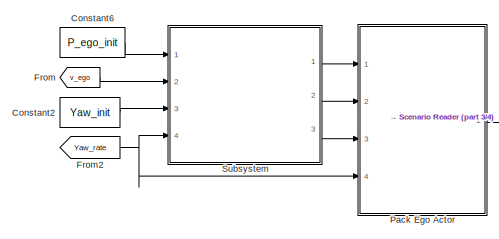
[diagram: root canvas - part 1/4, top left region]
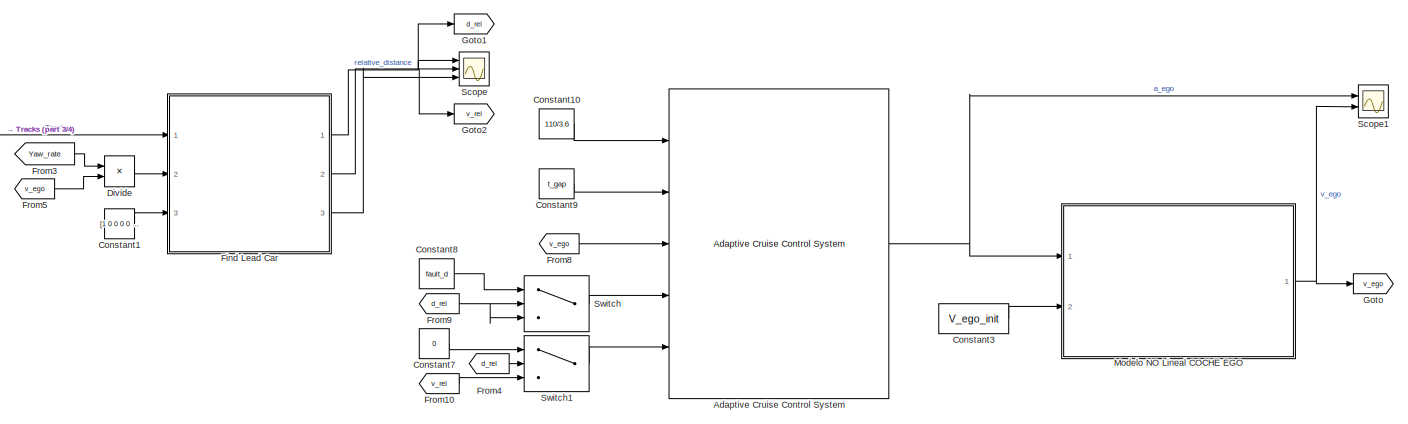
[diagram: root canvas - part 2/4, middle right region]
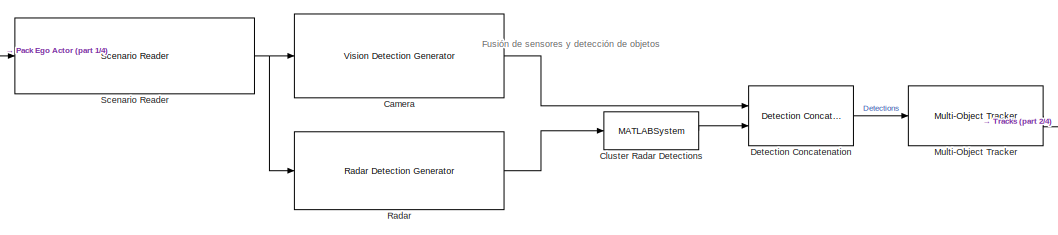
[diagram: root canvas - part 3/4, top center region]
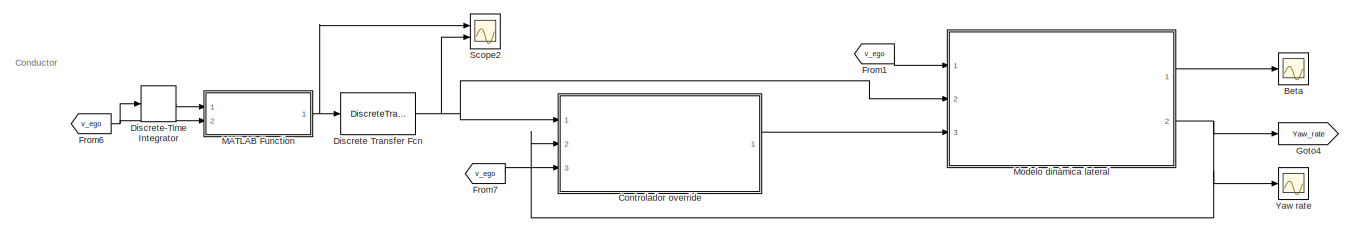
[diagram: root canvas - part 4/4, bottom center region]
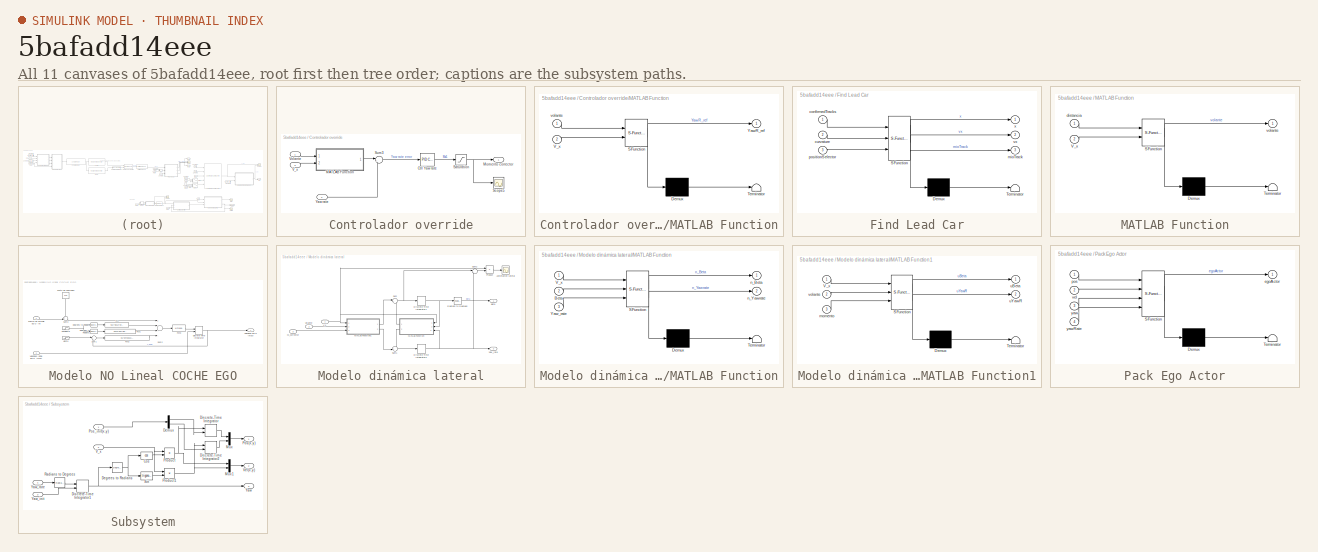
[diagram: thumbnail index - all 11 canvases of the model, root first then tree order]
MODEL slx_5bafadd14eee
KIND model
CONFIG AbsTol = auto
CONFIG EnableMultiTasking = off
CONFIG FixedStep = auto
CONFIG MaxStep = auto
CONFIG MinStep = auto
CONFIG RelTol = 1e-3
CONFIG SampleTimeConstraint = Unconstrained
CONFIG Solver = FixedStepDiscrete
CONFIG SolverName = FixedStepDiscrete
CONFIG StartTime = 0.0
CONFIG StopTime = 33
WORKSPACE source: mxarray member
WORKSPACE firstWarning = 1
WORKSPACE originalScenarioChecksum = 'FC0F50B9430312EE3AA3C1EBF2A1E89A'
BLOCK [Reference] Adaptive Cruise Control System  REF=mpcadaslib/Adaptive Cruise Control System
  Ports = [5, 1]
  SourceBlock = mpcadaslib/Adaptive Cruise Control System
  SourceProductBaseCode = MP
  SourceProductName = Model Predictive Control Toolbox
  SourceType = Adaptive cruise control (ACC) system
BLOCK [Scope] Beta
  Floating = off
  NumInputPorts = 1
  Ports = [1]
  ScopeSpecificationString = Simulink.scopes.TimeScopeBlockCfg('CurrentConfiguration', extmgr.ConfigurationSet(extmgr.Configuration('Core','General UI',true),extmgr.Configuration('Core','Source UI',true),extmgr.Configuration('Sources','WiredSimulink',true,'DataLoggingVariableName','ScopeData3'),extmgr.Configuration('Visuals','Time Domain',true,'SerializedDisplays',{struct('MinYLimReal','-0.91209','MaxYLimReal','1.46513','YLab...<+1505ch>
BLOCK [Reference] Camera  REF=drivingscenarioandsensors/Vision Detection Generator
  Ports = [1, 1]
  SourceBlock = drivingscenarioandsensors/Vision Detection Generator
  SourceProductBaseCode = DR
  SourceProductName = Automated Driving Toolbox
  SourceType = visionDetectionGenerator
BLOCK [MATLABSystem] Cluster Radar Detections
  BusName = BusClusterDetections
  BusNameSource = Auto
  ClusterSize = 5
  MaskDisplay = disp(['Detection' char(10) 'Clustering']);\nport_label('input',1,'In');\nport_label('output',1,'Out');
  MaskType = helperClusterDetections
  Ports = [1, 1]
  SimulateUsing = Interpreted execution
  System = helperClusterDetections
BLOCK [Constant] Constant1
  Value = [1 0 0 0 0 0; 0 0 1 0 0 0]
BLOCK [Constant] Constant10
  Value = 110/3.6
BLOCK [Constant] Constant2
  Value = Yaw_init
BLOCK [Constant] Constant3
  Value = V_ego_init
BLOCK [Constant] Constant6
  Value = P_ego_init
BLOCK [Constant] Constant7
  Value = 0
BLOCK [Constant] Constant8
  Value = fault_d
BLOCK [Constant] Constant9
  Value = t_gap
BLOCK [SubSystem] Controlador override
  Ports = [3, 1]
  RequestExecContextInheritance = off
BLOCK [Reference] Controlador override/Ctrl Yaw rate  REF=simulink/Continuous/PID Controller
  Ports = [1, 1]
  SourceBlock = simulink/Continuous/PID Controller
  SourceProductBaseCode = SL
  SourceProductName = Simulink
  SourceType = PID 1dof
BLOCK [SubSystem] Controlador override/MATLAB Function
  ErrorFcn = Stateflow.Translate.translate
  PermitHierarchicalResolution = ExplicitOnly
  Ports = [2, 1]
  RequestExecContextInheritance = off
  SFBlockType = MATLAB Function
  TreatAsAtomicUnit = on
BLOCK [Demux] Controlador override/MATLAB Function/ Demux 
  Outputs = 1
  Ports = [1, 1]
BLOCK [S-Function] Controlador override/MATLAB Function/ SFunction 
  EnableBusSupport = on
  FunctionName = sf_sfun
  PortCounts = [2 2]
  Ports = [2, 2]
  SFcnIsStateOwnerBlock = off
  SFunctionDeploymentMode = off
  Tag = Stateflow S-Function 4
BLOCK [Terminator] Controlador override/MATLAB Function/ Terminator 
BLOCK [Inport] Controlador override/MATLAB Function/V_x
  IconDisplay = Port number
  Port = 2
BLOCK [Outport] Controlador override/MATLAB Function/YawR_ref
  IconDisplay = Port number
BLOCK [Inport] Controlador override/MATLAB Function/volante
  IconDisplay = Port number
BLOCK [Outport] Controlador override/Momento corrector
  IconDisplay = Port number
BLOCK [Saturate] Controlador override/Saturation
  InputPortMap = u0
  LowerLimit = -5000
  Ports = [1, 1]
  UpperLimit = 5000
BLOCK [Scope] Controlador override/Scope5
  Floating = off
  NumInputPorts = 1
  Ports = [1]
  ScopeSpecificationString = Simulink.scopes.TimeScopeBlockCfg('CurrentConfiguration', extmgr.ConfigurationSet(extmgr.Configuration('Core','General UI',true),extmgr.Configuration('Core','Source UI',true),extmgr.Configuration('Sources','WiredSimulink',true,'DataLoggingVariableName','ScopeData7'),extmgr.Configuration('Visuals','Time Domain',true,'SerializedDisplays',{struct('MinYLimReal','-1957.4759','MaxYLimReal','1863.39713',...<+1485ch>
BLOCK [Sum] Controlador override/Sum3
  IconShape = round
  InputSameDT = off
  Inputs = |+-
  OutDataTypeStr = Inherit: Inherit via internal rule
  Ports = [2, 1]
  SaturateOnIntegerOverflow = off
BLOCK [Inport] Controlador override/V_x
  IconDisplay = Port number
  Port = 3
BLOCK [Inport] Controlador override/Volante
  IconDisplay = Port number
BLOCK [Inport] Controlador override/Yaw rate
  IconDisplay = Port number
  Port = 2
BLOCK [Reference] Detection Concatenation  REF=drivinglib/Detection Concatenation
  Ports = [2, 1]
  SourceBlock = drivinglib/Detection Concatenation
  SourceProductBaseCode = DR
  SourceProductName = Automated Driving Toolbox
  SourceType = driving.internal.DetectionConcatenation
BLOCK [DiscreteTransferFcn] Discrete Transfer Fcn
  Denominator = dendriver
  InitialStates = 0.5
  InputPortMap = u0
  Numerator = numdriver
  Ports = [1, 1]
  SampleTime = Tsdriver
BLOCK [DiscreteIntegrator] Discrete-Time Integrator
  ICPrevOutput = DiscIntNeverNeededParam
  ICPrevScaledInput = DiscIntNeverNeededParam
  InitialConditionSetting = Auto
  Ports = [1, 1]
  SampleTime = -1
BLOCK [Product] Divide
  InputSameDT = off
  Inputs = */
  OutDataTypeStr = Inherit: Inherit via internal rule
  Ports = [2, 1]
  RndMeth = Floor
  SaturateOnIntegerOverflow = off
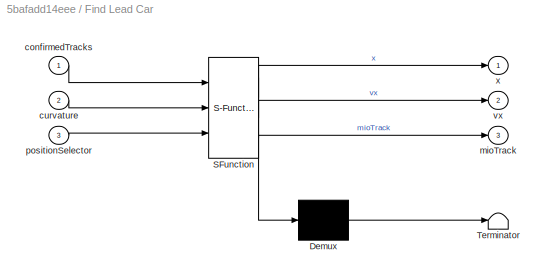
BLOCK [SubSystem] Find Lead Car
  ErrorFcn = Stateflow.Translate.translate
  PermitHierarchicalResolution = ExplicitOnly
  Ports = [3, 3]
  RequestExecContextInheritance = off
  SFBlockType = MATLAB Function
  TreatAsAtomicUnit = on
BLOCK [Demux] Find Lead Car/ Demux 
  Outputs = 1
  Ports = [1, 1]
BLOCK [S-Function] Find Lead Car/ SFunction 
  EnableBusSupport = on
  FunctionName = sf_sfun
  PortCounts = [3 4]
  Ports = [3, 4]
  SFcnIsStateOwnerBlock = off
  SFunctionDeploymentMode = off
  Tag = Stateflow S-Function 1
BLOCK [Terminator] Find Lead Car/ Terminator 
BLOCK [Inport] Find Lead Car/confirmedTracks
  IconDisplay = Port number
BLOCK [Inport] Find Lead Car/curvature
  IconDisplay = Port number
  Port = 2
BLOCK [Outport] Find Lead Car/mioTrack
  IconDisplay = Port number
  Port = 3
  VectorParamsAs1DForOutWhenUnconnected = off
BLOCK [Inport] Find Lead Car/positionSelector
  IconDisplay = Port number
  Port = 3
BLOCK [Outport] Find Lead Car/vx
  IconDisplay = Port number
  Port = 2
  VectorParamsAs1DForOutWhenUnconnected = off
BLOCK [Outport] Find Lead Car/x
  IconDisplay = Port number
  VectorParamsAs1DForOutWhenUnconnected = off
BLOCK [From] From
  GotoTag = v_ego
  TagVisibility = global
BLOCK [From] From1
  GotoTag = v_ego
  TagVisibility = global
BLOCK [From] From10
  GotoTag = v_rel
BLOCK [From] From2
  GotoTag = Yaw_rate
BLOCK [From] From3
  GotoTag = Yaw_rate
BLOCK [From] From4
  GotoTag = d_rel
BLOCK [From] From5
  GotoTag = v_ego
  TagVisibility = global
BLOCK [From] From6
  GotoTag = v_ego
  TagVisibility = global
BLOCK [From] From7
  GotoTag = v_ego
  TagVisibility = global
BLOCK [From] From8
  GotoTag = v_ego
  TagVisibility = global
BLOCK [From] From9
  GotoTag = d_rel
BLOCK [Goto] Goto
  GotoTag = v_ego
  TagVisibility = global
BLOCK [Goto] Goto1
  GotoTag = d_rel
BLOCK [Goto] Goto2
  GotoTag = v_rel
BLOCK [Goto] Goto4
  GotoTag = Yaw_rate
BLOCK [SubSystem] MATLAB Function
  ErrorFcn = Stateflow.Translate.translate
  PermitHierarchicalResolution = ExplicitOnly
  Ports = [2, 1]
  RequestExecContextInheritance = off
  SFBlockType = MATLAB Function
  TreatAsAtomicUnit = on
BLOCK [Demux] MATLAB Function/ Demux 
  Outputs = 1
  Ports = [1, 1]
BLOCK [S-Function] MATLAB Function/ SFunction 
  EnableBusSupport = on
  FunctionName = sf_sfun
  PortCounts = [2 2]
  Ports = [2, 2]
  SFcnIsStateOwnerBlock = off
  SFunctionDeploymentMode = off
  Tag = Stateflow S-Function 6
BLOCK [Terminator] MATLAB Function/ Terminator 
BLOCK [Inport] MATLAB Function/V_x
  IconDisplay = Port number
  Port = 2
BLOCK [Inport] MATLAB Function/distancia
  IconDisplay = Port number
BLOCK [Outport] MATLAB Function/volante
  IconDisplay = Port number
BLOCK [SubSystem] Modelo NO Lineal COCHE EGO
  Ports = [2, 1]
  RequestExecContextInheritance = off
BLOCK [Reference] Modelo NO Lineal COCHE EGO/Degrees to Radians  REF=simulink_extras/Transformations/Degrees to
Radians
  Ports = [1, 1]
  SourceBlock = simulink_extras/Transformations/Degrees to\nRadians
  SourceProductBaseCode = SL
  SourceProductName = Simulink
  SourceType = DegreesToRadians
BLOCK [Reference] Modelo NO Lineal COCHE EGO/Degrees to Radians1  REF=simulink_extras/Transformations/Degrees to
Radians
  Ports = [1, 1]
  SourceBlock = simulink_extras/Transformations/Degrees to\nRadians
  SourceProductBaseCode = SL
  SourceProductName = Simulink
  SourceType = DegreesToRadians
BLOCK [DiscreteIntegrator] Modelo NO Lineal COCHE EGO/Discrete-Time Integrator
  ICPrevOutput = DiscIntNeverNeededParam
  ICPrevScaledInput = DiscIntNeverNeededParam
  InitialConditionSetting = Auto
  InitialConditionSource = external
  Ports = [2, 1]
  SampleTime = -1
BLOCK [Fcn] Modelo NO Lineal COCHE EGO/Fcn
  Expr = 9.81*masa*sin(u)
BLOCK [Fcn] Modelo NO Lineal COCHE EGO/Fcn1
  Expr = 0.015*9.81*masa*cos(u)
BLOCK [Fcn] Modelo NO Lineal COCHE EGO/Fcn2
  Expr = 0.5*densidadAire*Cd*frontalArea*(u)^2
BLOCK [Fcn] Modelo NO Lineal COCHE EGO/Fcn3
  Expr = u/masa
BLOCK [Inport] Modelo NO Lineal COCHE EGO/Fuerza de empuje EGO (N)
  IconDisplay = Port number
BLOCK [Constant] Modelo NO Lineal COCHE EGO/Punto de operación
  Value = Fx0
BLOCK [Sum] Modelo NO Lineal COCHE EGO/Sum1
  IconShape = round
  InputSameDT = off
  Inputs = |++
  OutDataTypeStr = Inherit: Inherit via internal rule
  Ports = [2, 1]
  SaturateOnIntegerOverflow = off
BLOCK [Sum] Modelo NO Lineal COCHE EGO/Sum2
  InputSameDT = off
  Inputs = +---
  OutDataTypeStr = Inherit: Inherit via internal rule
  Ports = [4, 1]
  SaturateOnIntegerOverflow = off
BLOCK [Sum] Modelo NO Lineal COCHE EGO/Sum3
  IconShape = round
  InputSameDT = off
  Inputs = ++|
  OutDataTypeStr = Inherit: Inherit via internal rule
  Ports = [2, 1]
  SaturateOnIntegerOverflow = off
BLOCK [Outport] Modelo NO Lineal COCHE EGO/Velocidad EGO (mps)
  IconDisplay = Port number
  VectorParamsAs1DForOutWhenUnconnected = off
BLOCK [Inport] Modelo NO Lineal COCHE EGO/Velocidad Inicial EGO (mps)
  IconDisplay = Port number
  Port = 2
BLOCK [Step] Modelo NO Lineal COCHE EGO/pendiente
  After = FV2
  Before = IV2
  SampleTime = 0
  Time = T2
BLOCK [Step] Modelo NO Lineal COCHE EGO/viento
  After = FV3
  Before = IV3
  SampleTime = 0
  Time = T3
BLOCK [SubSystem] Modelo dinámica lateral
  Ports = [3, 2]
  RequestExecContextInheritance = off
BLOCK [Scope] Modelo dinámica lateral/Aceleración lateral
  Floating = off
  NumInputPorts = 1
  Ports = [1]
  ScopeSpecificationString = Simulink.scopes.TimeScopeBlockCfg('CurrentConfiguration', extmgr.ConfigurationSet(extmgr.Configuration('Core','General UI',true),extmgr.Configuration('Core','Source UI',true),extmgr.Configuration('Sources','WiredSimulink',true,'DataLoggingVariableName','ScopeData2'),extmgr.Configuration('Visuals','Time Domain',true,'SerializedDisplays',{struct('MinYLimReal','-5.91336','MaxYLimReal','3.59059','YLab...<+1471ch>
BLOCK [Outport] Modelo dinámica lateral/Beta
  IconDisplay = Port number
BLOCK [DiscreteIntegrator] Modelo dinámica lateral/Discrete-Time Integrator1
  ICPrevOutput = DiscIntNeverNeededParam
  ICPrevScaledInput = DiscIntNeverNeededParam
  InitialCondition = -0.011341149479459
  InitialConditionSetting = Auto
  Ports = [1, 1]
  SampleTime = 0.01
BLOCK [DiscreteIntegrator] Modelo dinámica lateral/Discrete-Time Integrator2
  ICPrevOutput = DiscIntNeverNeededParam
  ICPrevScaledInput = DiscIntNeverNeededParam
  InitialCondition = 0.08679
  InitialConditionSetting = Auto
  Ports = [1, 1]
  SampleTime = 0.01
BLOCK [SubSystem] Modelo dinámica lateral/MATLAB Function
  ErrorFcn = Stateflow.Translate.translate
  PermitHierarchicalResolution = ExplicitOnly
  Ports = [3, 2]
  RequestExecContextInheritance = off
  SFBlockType = MATLAB Function
  TreatAsAtomicUnit = on
BLOCK [Demux] Modelo dinámica lateral/MATLAB Function/ Demux 
  Outputs = 1
  Ports = [1, 1]
BLOCK [S-Function] Modelo dinámica lateral/MATLAB Function/ SFunction 
  EnableBusSupport = on
  FunctionName = sf_sfun
  PortCounts = [3 3]
  Ports = [3, 3]
  SFcnIsStateOwnerBlock = off
  SFunctionDeploymentMode = off
  Tag = Stateflow S-Function 2
BLOCK [Terminator] Modelo dinámica lateral/MATLAB Function/ Terminator 
BLOCK [Inport] Modelo dinámica lateral/MATLAB Function/Beta
  IconDisplay = Port number
  Port = 2
BLOCK [Inport] Modelo dinámica lateral/MATLAB Function/V_x
  IconDisplay = Port number
BLOCK [Inport] Modelo dinámica lateral/MATLAB Function/Yaw_rate
  IconDisplay = Port number
  Port = 3
BLOCK [Outport] Modelo dinámica lateral/MATLAB Function/n_Beta
  IconDisplay = Port number
BLOCK [Outport] Modelo dinámica lateral/MATLAB Function/n_Yawrate
  IconDisplay = Port number
  Port = 2
BLOCK [SubSystem] Modelo dinámica lateral/MATLAB Function1
  ErrorFcn = Stateflow.Translate.translate
  PermitHierarchicalResolution = ExplicitOnly
  Ports = [3, 2]
  RequestExecContextInheritance = off
  SFBlockType = MATLAB Function
  TreatAsAtomicUnit = on
BLOCK [Demux] Modelo dinámica lateral/MATLAB Function1/ Demux 
  Outputs = 1
  Ports = [1, 1]
BLOCK [S-Function] Modelo dinámica lateral/MATLAB Function1/ SFunction 
  EnableBusSupport = on
  FunctionName = sf_sfun
  PortCounts = [3 3]
  Ports = [3, 3]
  SFcnIsStateOwnerBlock = off
  SFunctionDeploymentMode = off
  Tag = Stateflow S-Function 3
BLOCK [Terminator] Modelo dinámica lateral/MATLAB Function1/ Terminator 
BLOCK [Inport] Modelo dinámica lateral/MATLAB Function1/V_x
  IconDisplay = Port number
BLOCK [Inport] Modelo dinámica lateral/MATLAB Function1/momento
  IconDisplay = Port number
  Port = 3
BLOCK [Outport] Modelo dinámica lateral/MATLAB Function1/uBeta
  IconDisplay = Port number
BLOCK [Outport] Modelo dinámica lateral/MATLAB Function1/uYawR
  IconDisplay = Port number
  Port = 2
BLOCK [Inport] Modelo dinámica lateral/MATLAB Function1/volante
  IconDisplay = Port number
  Port = 2
BLOCK [Inport] Modelo dinámica lateral/M_corrector
  IconDisplay = Port number
  Port = 3
BLOCK [Product] Modelo dinámica lateral/Product
  InputSameDT = off
  OutDataTypeStr = Inherit: Inherit via internal rule
  Ports = [2, 1]
  RndMeth = Floor
  SaturateOnIntegerOverflow = off
BLOCK [Reference] Modelo dinámica lateral/Radians to Degrees  REF=simulink_extras/Transformations/Radians
to Degrees
  Ports = [1, 1]
  SourceBlock = simulink_extras/Transformations/Radians\nto Degrees
  SourceProductBaseCode = SL
  SourceProductName = Simulink
  SourceType = RadiansToDegrees
BLOCK [Sum] Modelo dinámica lateral/Sum
  IconShape = round
  InputSameDT = off
  Inputs = |++
  OutDataTypeStr = Inherit: Inherit via internal rule
  Ports = [2, 1]
  SaturateOnIntegerOverflow = off
BLOCK [Sum] Modelo dinámica lateral/Sum1
  IconShape = round
  InputSameDT = off
  Inputs = ++|
  OutDataTypeStr = Inherit: Inherit via internal rule
  Ports = [2, 1]
  SaturateOnIntegerOverflow = off
BLOCK [Sum] Modelo dinámica lateral/Sum2
  IconShape = round
  InputSameDT = off
  Inputs = |++
  OutDataTypeStr = Inherit: Inherit via internal rule
  Ports = [2, 1]
  SaturateOnIntegerOverflow = off
BLOCK [Inport] Modelo dinámica lateral/V_x
  IconDisplay = Port number
BLOCK [Inport] Modelo dinámica lateral/Volante
  IconDisplay = Port number
  Port = 2
BLOCK [Outport] Modelo dinámica lateral/Yaw_rate
  IconDisplay = Port number
  Port = 2
BLOCK [Reference] Multi-Object Tracker  REF=drivinglib/Multi-Object Tracker
  Ports = [1, 1]
  SourceBlock = drivinglib/Multi-Object Tracker
  SourceProductBaseCode = DR
  SourceProductName = Automated Driving Toolbox
  SourceType = multiObjectTracker
BLOCK [SubSystem] Pack Ego Actor
  ErrorFcn = Stateflow.Translate.translate
  PermitHierarchicalResolution = ExplicitOnly
  Ports = [4, 1]
  RequestExecContextInheritance = off
  SFBlockType = MATLAB Function
  TreatAsAtomicUnit = on
BLOCK [Demux] Pack Ego Actor/ Demux 
  Outputs = 1
  Ports = [1, 1]
BLOCK [S-Function] Pack Ego Actor/ SFunction 
  EnableBusSupport = on
  FunctionName = sf_sfun
  PortCounts = [4 2]
  Ports = [4, 2]
  SFcnIsStateOwnerBlock = off
  SFunctionDeploymentMode = off
  Tag = Stateflow S-Function 5
BLOCK [Terminator] Pack Ego Actor/ Terminator 
BLOCK [Outport] Pack Ego Actor/egoActor
  IconDisplay = Port number
  VectorParamsAs1DForOutWhenUnconnected = off
BLOCK [Inport] Pack Ego Actor/pos
  IconDisplay = Port number
BLOCK [Inport] Pack Ego Actor/vel
  IconDisplay = Port number
  Port = 2
BLOCK [Inport] Pack Ego Actor/yaw
  IconDisplay = Port number
  Port = 3
BLOCK [Inport] Pack Ego Actor/yawRate
  IconDisplay = Port number
  Port = 4
BLOCK [Reference] Radar  REF=drivingscenarioandsensors/Radar Detection Generator
  Ports = [1, 1]
  SourceBlock = drivingscenarioandsensors/Radar Detection Generator
  SourceProductBaseCode = DR
  SourceProductName = Automated Driving Toolbox
  SourceType = radarDetectionGenerator
BLOCK [Reference] Scenario Reader  REF=drivingscenarioandsensors/Scenario Reader
  Ports = [1, 1]
  SourceBlock = drivingscenarioandsensors/Scenario Reader
  SourceProductBaseCode = DR
  SourceProductName = Automated Driving Toolbox
  SourceType = driving.scenario.internal.ScenarioReader
BLOCK [Scope] Scope
  Floating = off
  NumInputPorts = 3
  Ports = [3]
  ScopeSpecificationString = Simulink.scopes.TimeScopeBlockCfg('CurrentConfiguration', extmgr.ConfigurationSet(extmgr.Configuration('Core','General UI',true),extmgr.Configuration('Core','Source UI',true),extmgr.Configuration('Sources','WiredSimulink',true,'DataLoggingVariableName','ScopeData1'),extmgr.Configuration('Visuals','Time Domain',true,'SerializedDisplays',{struct('MinYLimReal','-4.59208','MaxYLimReal','110.18348','YL...<+2849ch>
BLOCK [Scope] Scope1
  Floating = off
  NumInputPorts = 2
  Ports = [2]
  ScopeSpecificationString = Simulink.scopes.TimeScopeBlockCfg('CurrentConfiguration', extmgr.ConfigurationSet(extmgr.Configuration('Core','General UI',true),extmgr.Configuration('Core','Source UI',true),extmgr.Configuration('Sources','WiredSimulink',true),extmgr.Configuration('Visuals','Time Domain',true,'SerializedDisplays',{struct('MinYLimReal','-3488.45487','MaxYLimReal','1396.09382','YLabelReal','','MinYLimMag','  0.0000...<+2036ch>
BLOCK [Scope] Scope2
  Floating = off
  NumInputPorts = 2
  Ports = [2]
  ScopeSpecificationString = Simulink.scopes.TimeScopeBlockCfg('CurrentConfiguration', extmgr.ConfigurationSet(extmgr.Configuration('Core','General UI',true),extmgr.Configuration('Core','Source UI',true),extmgr.Configuration('Sources','WiredSimulink',true,'DataLoggingVariableName','ScopeData1'),extmgr.Configuration('Visuals','Time Domain',true,'SerializedDisplays',{struct('MinYLimReal','-0.04197','MaxYLimReal','0.02517','YLab...<+2178ch>
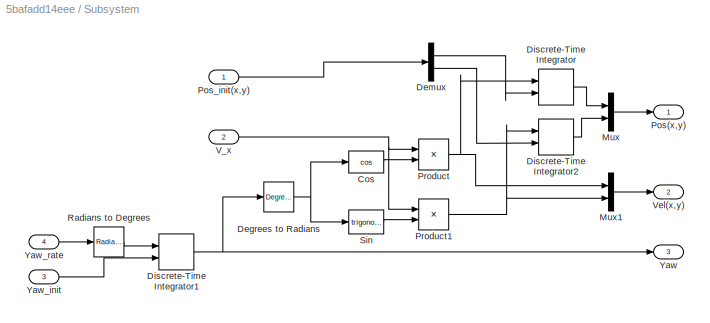
BLOCK [SubSystem] Subsystem
  Ports = [4, 3]
  RequestExecContextInheritance = off
BLOCK [Trigonometry] Subsystem/Cos
  Operator = cos
  Ports = [1, 1]
BLOCK [Reference] Subsystem/Degrees to Radians  REF=simulink_extras/Transformations/Degrees to
Radians
  Ports = [1, 1]
  SourceBlock = simulink_extras/Transformations/Degrees to\nRadians
  SourceProductBaseCode = SL
  SourceProductName = Simulink
  SourceType = DegreesToRadians
BLOCK [Demux] Subsystem/Demux
  DisplayOption = bar
  Outputs = 2
  Ports = [1, 2]
BLOCK [DiscreteIntegrator] Subsystem/Discrete-Time Integrator
  ICPrevOutput = DiscIntNeverNeededParam
  ICPrevScaledInput = DiscIntNeverNeededParam
  InitialCondition = 5
  InitialConditionSetting = Auto
  InitialConditionSource = external
  Ports = [2, 1]
  SampleTime = -1
BLOCK [DiscreteIntegrator] Subsystem/Discrete-Time Integrator1
  ICPrevOutput = DiscIntNeverNeededParam
  ICPrevScaledInput = DiscIntNeverNeededParam
  InitialConditionSetting = Auto
  InitialConditionSource = external
  Ports = [2, 1]
  SampleTime = -1
BLOCK [DiscreteIntegrator] Subsystem/Discrete-Time Integrator2
  ICPrevOutput = DiscIntNeverNeededParam
  ICPrevScaledInput = DiscIntNeverNeededParam
  InitialConditionSetting = Auto
  InitialConditionSource = external
  Ports = [2, 1]
  SampleTime = -1
BLOCK [Mux] Subsystem/Mux
  DisplayOption = bar
  Inputs = 2
  Ports = [2, 1]
BLOCK [Mux] Subsystem/Mux1
  DisplayOption = bar
  Inputs = 2
  Ports = [2, 1]
BLOCK [Outport] Subsystem/Pos(x,y)
  IconDisplay = Port number
BLOCK [Inport] Subsystem/Pos_init(x,y)
  IconDisplay = Port number
BLOCK [Product] Subsystem/Product
  InputSameDT = off
  OutDataTypeStr = Inherit: Inherit via internal rule
  Ports = [2, 1]
  RndMeth = Floor
  SaturateOnIntegerOverflow = off
BLOCK [Product] Subsystem/Product1
  InputSameDT = off
  OutDataTypeStr = Inherit: Inherit via internal rule
  Ports = [2, 1]
  RndMeth = Floor
  SaturateOnIntegerOverflow = off
BLOCK [Reference] Subsystem/Radians to Degrees  REF=simulink_extras/Transformations/Radians
to Degrees
  Ports = [1, 1]
  SourceBlock = simulink_extras/Transformations/Radians\nto Degrees
  SourceProductBaseCode = SL
  SourceProductName = Simulink
  SourceType = RadiansToDegrees
BLOCK [Trigonometry] Subsystem/Sin
  Ports = [1, 1]
BLOCK [Inport] Subsystem/V_x
  IconDisplay = Port number
  Port = 2
BLOCK [Outport] Subsystem/Vel(x,y)
  IconDisplay = Port number
  Port = 2
BLOCK [Outport] Subsystem/Yaw
  IconDisplay = Port number
  Port = 3
BLOCK [Inport] Subsystem/Yaw_init
  IconDisplay = Port number
  Port = 3
BLOCK [Inport] Subsystem/Yaw_rate
  IconDisplay = Port number
  Port = 4
BLOCK [Switch] Switch
  Criteria = u2 > Threshold
  InputSameDT = off
  SaturateOnIntegerOverflow = off
  Threshold = 200
BLOCK [Switch] Switch1
  Criteria = u2 > Threshold
  InputSameDT = off
  SaturateOnIntegerOverflow = off
  Threshold = 200
BLOCK [Scope] Yaw rate
  Floating = off
  NumInputPorts = 1
  Ports = [1]
  ScopeSpecificationString = Simulink.scopes.TimeScopeBlockCfg('CurrentConfiguration', extmgr.ConfigurationSet(extmgr.Configuration('Core','General UI',true),extmgr.Configuration('Core','Source UI',true),extmgr.Configuration('Sources','WiredSimulink',true,'DataLoggingVariableName','ScopeData8'),extmgr.Configuration('Visuals','Time Domain',true,'SerializedDisplays',{struct('MinYLimReal','-0.19775','MaxYLimReal','0.12854','YLab...<+1479ch>
ANNOTATION (root): Conductor
ANNOTATION (root): Fusión de sensores y detección de objetos
NET Adaptive Cruise Control System:1 -> Modelo NO Lineal COCHE EGO:1, Scope1:1
LINE Camera:1 -> Detection Concatenation:1
LINE Cluster Radar Detections:1 -> Detection Concatenation:2
LINE Constant10:1 -> Adaptive Cruise Control System:1
LINE Constant1:1 -> Find Lead Car:3
LINE Constant2:1 -> Subsystem:3
LINE Constant3:1 -> Modelo NO Lineal COCHE EGO:2
LINE Constant6:1 -> Subsystem:1
LINE Constant7:1 -> Switch1:1
LINE Constant8:1 -> Switch:1
LINE Constant9:1 -> Adaptive Cruise Control System:2
LINE Controlador override/Ctrl Yaw rate:1 -> Controlador override/Saturation:1
LINE Controlador override/MATLAB Function:1 -> Controlador override/Sum3:1
NET Controlador override/Saturation:1 -> Controlador override/Momento corrector:1, Controlador override/Scope5:1
LINE Controlador override/Sum3:1 -> Controlador override/Ctrl Yaw rate:1
LINE Controlador override/V_x:1 -> Controlador override/MATLAB Function:2
LINE Controlador override/Volante:1 -> Controlador override/MATLAB Function:1
LINE Controlador override/Yaw rate:1 -> Controlador override/Sum3:2
LINE Controlador override:1 -> Modelo dinámica lateral:3
LINE Detection Concatenation:1 -> Multi-Object Tracker:1
NET Discrete Transfer Fcn:1 -> Controlador override:1, Modelo dinámica lateral:2, Scope2:2
LINE Discrete-Time Integrator:1 -> MATLAB Function:1
LINE Divide:1 -> Find Lead Car:2
NET Find Lead Car:1 -> Goto1:1, Scope:1
NET Find Lead Car:2 -> Goto2:1, Scope:2
LINE Find Lead Car:3 -> Scope:3
LINE From10:1 -> Switch1:3
LINE From1:1 -> Modelo dinámica lateral:1
NET From2:1 -> Pack Ego Actor:4, Subsystem:4
LINE From3:1 -> Divide:1
LINE From4:1 -> Switch1:2
LINE From5:1 -> Divide:2
NET From6:1 -> Discrete-Time Integrator:1, MATLAB Function:2
LINE From7:1 -> Controlador override:3
LINE From8:1 -> Adaptive Cruise Control System:3
NET From9:1 -> Switch:2, Switch:3
LINE From:1 -> Subsystem:2
NET MATLAB Function:1 -> Discrete Transfer Fcn:1, Scope2:1
LINE Modelo NO Lineal COCHE EGO/Degrees to Radians1:1 -> Modelo NO Lineal COCHE EGO/Fcn1:1
LINE Modelo NO Lineal COCHE EGO/Degrees to Radians:1 -> Modelo NO Lineal COCHE EGO/Fcn:1
NET Modelo NO Lineal COCHE EGO/Discrete-Time Integrator:1 -> Modelo NO Lineal COCHE EGO/Sum1:2, Modelo NO Lineal COCHE EGO/Velocidad EGO (mps):1
LINE Modelo NO Lineal COCHE EGO/Fcn1:1 -> Modelo NO Lineal COCHE EGO/Sum2:3
LINE Modelo NO Lineal COCHE EGO/Fcn2:1 -> Modelo NO Lineal COCHE EGO/Sum2:4
LINE Modelo NO Lineal COCHE EGO/Fcn3:1 -> Modelo NO Lineal COCHE EGO/Discrete-Time Integrator:1
LINE Modelo NO Lineal COCHE EGO/Fcn:1 -> Modelo NO Lineal COCHE EGO/Sum2:2
LINE Modelo NO Lineal COCHE EGO/Fuerza de empuje EGO (N):1 -> Modelo NO Lineal COCHE EGO/Sum3:2
LINE Modelo NO Lineal COCHE EGO/Punto de operación:1 -> Modelo NO Lineal COCHE EGO/Sum3:1
LINE Modelo NO Lineal COCHE EGO/Sum1:1 -> Modelo NO Lineal COCHE EGO/Fcn2:1
LINE Modelo NO Lineal COCHE EGO/Sum2:1 -> Modelo NO Lineal COCHE EGO/Fcn3:1
LINE Modelo NO Lineal COCHE EGO/Sum3:1 -> Modelo NO Lineal COCHE EGO/Sum2:1
LINE Modelo NO Lineal COCHE EGO/Velocidad Inicial EGO (mps):1 -> Modelo NO Lineal COCHE EGO/Discrete-Time Integrator:2
NET Modelo NO Lineal COCHE EGO/pendiente:1 -> Modelo NO Lineal COCHE EGO/Degrees to Radians1:1, Modelo NO Lineal COCHE EGO/Degrees to Radians:1
LINE Modelo NO Lineal COCHE EGO/viento:1 -> Modelo NO Lineal COCHE EGO/Sum1:1
NET Modelo NO Lineal COCHE EGO:1 -> Goto:1, Scope1:2
NET Modelo dinámica lateral/Discrete-Time Integrator1:1 -> Modelo dinámica lateral/MATLAB Function:2, Modelo dinámica lateral/Radians to Degrees:1
NET Modelo dinámica lateral/Discrete-Time Integrator2:1 -> Modelo dinámica lateral/MATLAB Function:3, Modelo dinámica lateral/Sum2:2, Modelo dinámica lateral/Yaw_rate:1
LINE Modelo dinámica lateral/MATLAB Function1:1 -> Modelo dinámica lateral/Sum:1
LINE Modelo dinámica lateral/MATLAB Function1:2 -> Modelo dinámica lateral/Sum1:2
LINE Modelo dinámica lateral/MATLAB Function:1 -> Modelo dinámica lateral/Sum:2
LINE Modelo dinámica lateral/MATLAB Function:2 -> Modelo dinámica lateral/Sum1:1
LINE Modelo dinámica lateral/M_corrector:1 -> Modelo dinámica lateral/MATLAB Function1:3
LINE Modelo dinámica lateral/Product:1 -> Modelo dinámica lateral/Aceleración lateral:1
LINE Modelo dinámica lateral/Radians to Degrees:1 -> Modelo dinámica lateral/Beta:1
LINE Modelo dinámica lateral/Sum1:1 -> Modelo dinámica lateral/Discrete-Time Integrator2:1
LINE Modelo dinámica lateral/Sum2:1 -> Modelo dinámica lateral/Product:2
NET Modelo dinámica lateral/Sum:1 -> Modelo dinámica lateral/Discrete-Time Integrator1:1, Modelo dinámica lateral/Sum2:1
NET Modelo dinámica lateral/V_x:1 -> Modelo dinámica lateral/MATLAB Function1:1, Modelo dinámica lateral/MATLAB Function:1, Modelo dinámica lateral/Product:1
LINE Modelo dinámica lateral/Volante:1 -> Modelo dinámica lateral/MATLAB Function1:2
LINE Modelo dinámica lateral:1 -> Beta:1
NET Modelo dinámica lateral:2 -> Controlador override:2, Goto4:1, Yaw rate:1
LINE Multi-Object Tracker:1 -> Find Lead Car:1
LINE Pack Ego Actor:1 -> Scenario Reader:1
LINE Radar:1 -> Cluster Radar Detections:1
NET Scenario Reader:1 -> Camera:1, Radar:1
LINE Subsystem/Cos:1 -> Subsystem/Product:2
NET Subsystem/Degrees to Radians:1 -> Subsystem/Cos:1, Subsystem/Sin:1
LINE Subsystem/Demux:1 -> Subsystem/Discrete-Time Integrator:2
LINE Subsystem/Demux:2 -> Subsystem/Discrete-Time Integrator2:2
NET Subsystem/Discrete-Time Integrator1:1 -> Subsystem/Degrees to Radians:1, Subsystem/Yaw:1
LINE Subsystem/Discrete-Time Integrator2:1 -> Subsystem/Mux:2
LINE Subsystem/Discrete-Time Integrator:1 -> Subsystem/Mux:1
LINE Subsystem/Mux1:1 -> Subsystem/Vel(x,y):1
LINE Subsystem/Mux:1 -> Subsystem/Pos(x,y):1
LINE Subsystem/Pos_init(x,y):1 -> Subsystem/Demux:1
NET Subsystem/Product1:1 -> Subsystem/Discrete-Time Integrator2:1, Subsystem/Mux1:2
NET Subsystem/Product:1 -> Subsystem/Discrete-Time Integrator:1, Subsystem/Mux1:1
LINE Subsystem/Radians to Degrees:1 -> Subsystem/Discrete-Time Integrator1:1
LINE Subsystem/Sin:1 -> Subsystem/Product1:2
NET Subsystem/V_x:1 -> Subsystem/Product1:1, Subsystem/Product:1
LINE Subsystem/Yaw_init:1 -> Subsystem/Discrete-Time Integrator1:2
LINE Subsystem/Yaw_rate:1 -> Subsystem/Radians to Degrees:1
LINE Subsystem:1 -> Pack Ego Actor:1
LINE Subsystem:2 -> Pack Ego Actor:2
LINE Subsystem:3 -> Pack Ego Actor:3
LINE Switch1:1 -> Adaptive Cruise Control System:5
LINE Switch:1 -> Adaptive Cruise Control System:4
note: NET lines group one-source signal fan-out (src -> all destinations, sorted); 1:1 wires keep LINE
CHART Find Lead Car states=1 transitions=1
  STATE_LABEL 'eML_blk_kernel()'
  STATE_LABEL "SCRIPT:\nfunction [x,vx,mioTrack] = findLeadCar(confirmedTracks, curvature, positionSelector)\n% This function finds the lead car: a car in front of the ego car that\n% satisfies all the criteria below:\n% * Within the ego car's lane.\n% * In front of the ego car.\n% * Closest to the ego car.\n\n% Important notes:\n% 1. If you change state definition, change the following:\n%       State = [x;vx;y;vy;z;vz] ...<+1713ch>"
CHART Modelo dinámica lateral/MATLAB Function states=1 transitions=1
  STATE_LABEL 'eML_blk_kernel()'
  STATE_LABEL 'SCRIPT:\nfunction [n_Beta, n_Yawrate] = matrizA(V_x,Beta,Yaw_rate)\n\nmasa = 1435;\nL = 2.54;\na = 1.14;\nb = L - a;\nI_z = 2420;\nC_af = 44000;\nC_ar = 47000;\n\nA = [-2*(C_af+C_ar)/(masa*V_x) 2*(-a*C_af + b*C_ar)/(masa*V_x^2)-1; ...\n    2*(-a*C_af + b*C_ar)/I_z -2*(a^2*C_af + b^2*C_ar)/(I_z*V_x)];\n\nn_estados = A*[Beta; Yaw_rate];\nn_Beta = n_estados(1);\nn_Yawrate = n_estados(2);'
CHART Modelo dinámica lateral/MATLAB Function1 states=1 transitions=1
  STATE_LABEL 'eML_blk_kernel()'
  STATE_LABEL 'SCRIPT:\nfunction [uBeta, uYawR] = matrizB(V_x,volante,momento)\n\nmasa = 1435;\na = 1.14;\nI_z = 2420;\nC_af = 44000;\nC_ar = 47000;\n\nB = [2*C_af/(masa*V_x) 0; 2*a*C_ar/I_z 1/I_z];\n\nus = B*[volante; momento];\nuBeta = us(1);\nuYawR = us(2);'
CHART Controlador override/MATLAB Function states=1 transitions=1
  STATE_LABEL 'eML_blk_kernel()'
  STATE_LABEL 'SCRIPT:\nfunction YawR_ref = YawR_ref(volante,V_x)\n\nmasa = 1435;\nL = 2.54;\na = 1.14;\nb = L - a;\nC_af = 44000;\nC_ar = 47000;\n\nYawR_ref = V_x/(L+masa/L*(b/C_af-a/C_ar)*V_x^2)*volante;'
CHART Pack Ego Actor states=1 transitions=1
  STATE_LABEL 'eML_blk_kernel()'
  STATE_LABEL "SCRIPT:\nfunction egoActor = packEgo(pos,vel,yaw,yawRate)\n% Pack ego information into a single ego actor bus\n%\n% Imoprtant note:\n% Output is a bus of type BusActorsActors. This is the same bus used by the\n% Scenario Reader to output an individual actor. If you change the\n% output bus name of Scenario Reader, change the output bus name here\n% as well by clicking on 'Edit Data' in the menu above.\n\neg...<+215ch>"
CHART MATLAB Function states=1 transitions=1
  STATE_LABEL 'eML_blk_kernel()'
  STATE_LABEL 'SCRIPT:\nfunction volante = conductor(distancia,V_x)\n\nmasa = 1435;\nL = 2.54;\na = 1.14;\nb = L - a;\nC_af = 44000;\nC_ar = 47000;\n\nif distancia < 411+15\n    R = 351.8;\n    volante = (L+masa/L*(b/C_af-a/C_ar)*V_x^2)/R;\nelseif distancia < 411+15+170\n    volante = 0;\nelseif distancia < 411+15+170+60\n    R = -188+3.6;\n    volante = (L+masa/L*(b/C_af-a/C_ar)*V_x^2)/R;\nelse\n    R = -188+3.6;\n    volante = (L...<+38ch>'
